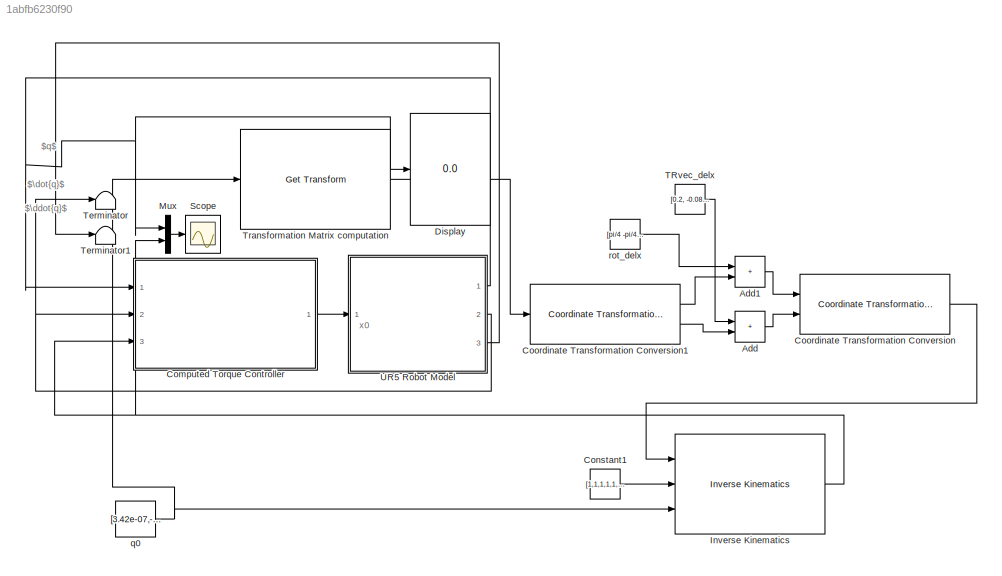
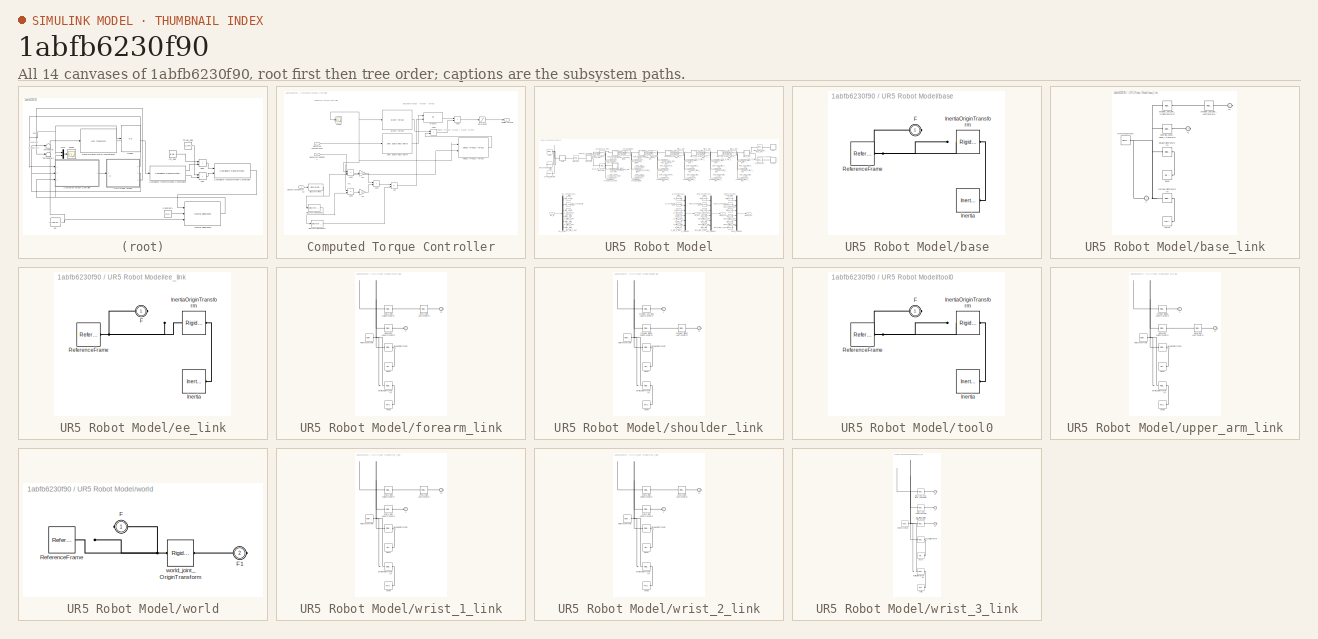
[diagram: thumbnail index - all 14 canvases of the model, root first then tree order]
MODEL slx_1abfb6230f90
KIND model
CONFIG AbsTol = auto
CONFIG EnableMultiTasking = off
CONFIG FixedStep = auto
CONFIG MaxStep = auto
CONFIG MinStep = auto
CONFIG RelTol = 1e-3
CONFIG SampleTimeConstraint = Unconstrained
CONFIG SolverName = VariableStepAuto
CONFIG StartTime = 0.0
CONFIG StopTime = 10.0
WORKSPACE source: mxarray member
WORKSPACE dq0 = [0 0 0 0 0 0]
WORKSPACE q0 = [0 0 0 0 0 0]
WORKSPACE robotModel: robotics.RigidBodyTree (value not decoded)
BLOCK [Sum] Add
  IconShape = rectangular
  Ports = [2, 1]
BLOCK [Sum] Add1
  IconShape = rectangular
  Ports = [2, 1]
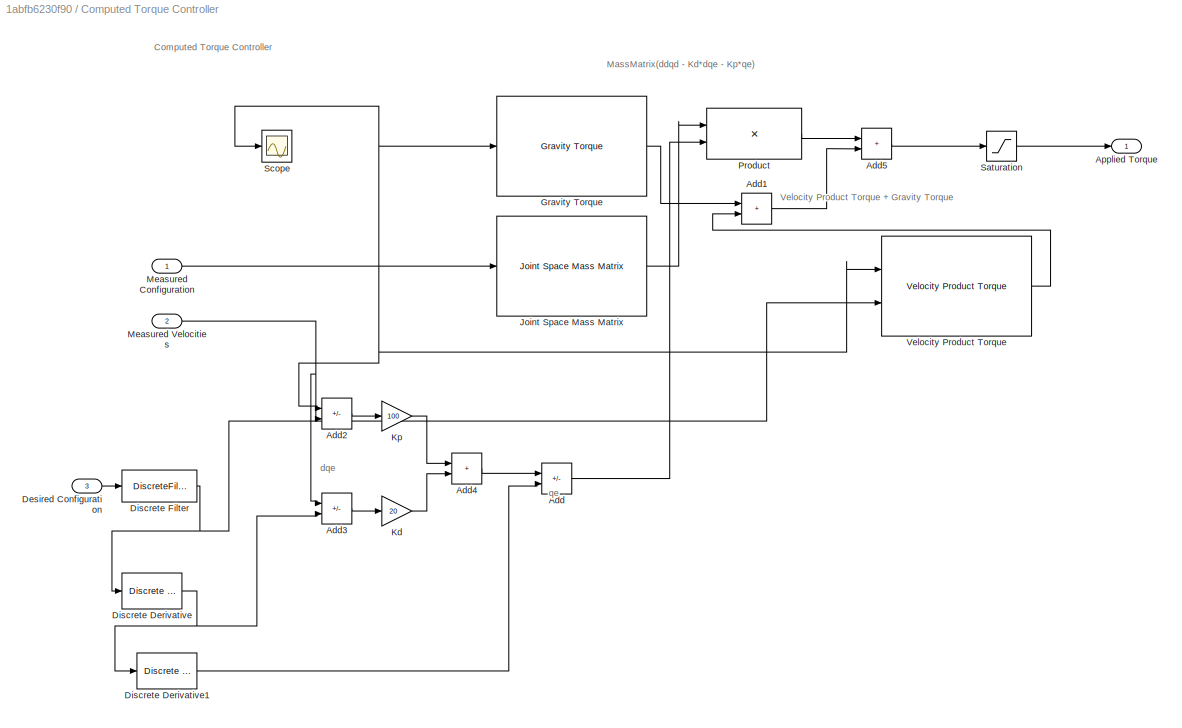
BLOCK [SubSystem] Computed Torque Controller
  Ports = [3, 1]
  RequestExecContextInheritance = off
BLOCK [Sum] Computed Torque Controller/Add
  IconShape = rectangular
  Inputs = -+
  Ports = [2, 1]
BLOCK [Sum] Computed Torque Controller/Add1
  IconShape = rectangular
  Ports = [2, 1]
BLOCK [Sum] Computed Torque Controller/Add2
  IconShape = rectangular
  Inputs = +-
  Ports = [2, 1]
BLOCK [Sum] Computed Torque Controller/Add3
  IconShape = rectangular
  Inputs = +-
  Ports = [2, 1]
BLOCK [Sum] Computed Torque Controller/Add4
  IconShape = rectangular
  Ports = [2, 1]
BLOCK [Sum] Computed Torque Controller/Add5
  IconShape = rectangular
  Ports = [2, 1]
BLOCK [Outport] Computed Torque Controller/Applied Torque
  NameLocation = top
  VectorParamsAs1DForOutWhenUnconnected = off
BLOCK [Inport] Computed Torque Controller/Desired Configuration
  Port = 3
BLOCK [Reference] Computed Torque Controller/Discrete Derivative  REF=simulink/Discrete/Discrete Derivative
  Ports = [1, 1]
  SourceBlock = simulink/Discrete/Discrete Derivative
  SourceProductBaseCode = SL
  SourceType = Discrete Derivative
BLOCK [Reference] Computed Torque Controller/Discrete Derivative1  REF=simulink/Discrete/Discrete Derivative
  Ports = [1, 1]
  SourceBlock = simulink/Discrete/Discrete Derivative
  SourceProductBaseCode = SL
  SourceType = Discrete Derivative
BLOCK [DiscreteFilter] Computed Torque Controller/Discrete Filter
  Denominator = [1]
  InitialStates = repmat(q0',19,1)
  InputPortMap = u0
  Numerator = ones(1,20)*1/20
  Ports = [1, 1]
BLOCK [Reference] Computed Torque Controller/Gravity Torque  REF=robotmaniplib/Gravity Torque
  Ports = [1, 1]
  SourceBlock = robotmaniplib/Gravity Torque
  SourceProductBaseCode = RO
  SourceType = Gravity Torque
BLOCK [Reference] Computed Torque Controller/Joint Space Mass Matrix  REF=robotmaniplib/Joint Space Mass Matrix
  Ports = [1, 1]
  SourceBlock = robotmaniplib/Joint Space Mass Matrix
  SourceProductBaseCode = RO
  SourceType = Joint Space Mass Matrix
BLOCK [Gain] Computed Torque Controller/Kd
  Gain = 20
BLOCK [Gain] Computed Torque Controller/Kp
  Gain = 100
BLOCK [Inport] Computed Torque Controller/Measured Configuration
  NameLocation = top
BLOCK [Inport] Computed Torque Controller/Measured Velocities
  Port = 2
BLOCK [Product] Computed Torque Controller/Product
  Multiplication = Matrix(*)
  Ports = [2, 1]
BLOCK [Saturate] Computed Torque Controller/Saturation
  LowerLimit = -100
  UpperLimit = 100
BLOCK [Scope] Computed Torque Controller/Scope
  Floating = off
  NumInputPorts = 1
  Ports = [1]
  ScopeSpecificationString = Simulink.scopes.TimeScopeBlockCfg('CurrentConfiguration', extmgr.ConfigurationSet(extmgr.Configuration('Core','General UI',true),extmgr.Configuration('Core','Source UI',true),extmgr.Configuration('Sources','WiredSimulink',true,'DataLoggingVariableName','ScopeData1'),extmgr.Configuration('Visuals','Time Domain',true,'SerializedDisplays',{struct('MinYLimReal','-3.23006','MaxYLimReal','3.44404','YLab...<+1906ch>
BLOCK [Reference] Computed Torque Controller/Velocity Product Torque  REF=robotmaniplib/Velocity Product Torque
  Ports = [2, 1]
  SourceBlock = robotmaniplib/Velocity Product Torque
  SourceProductBaseCode = RO
  SourceType = Velocity Product Torque
BLOCK [Constant] Constant1
  Value = [1,1,1,1,1,1]
BLOCK [Reference] Coordinate Transformation Conversion  REF=robotcorelib/Coordinate Transformation Conversion
  Ports = [2, 1]
  SourceBlock = robotcorelib/Coordinate Transformation Conversion
  SourceProductBaseCode = RO,NV,RR,UV
  SourceType = robotics.slcore.internal.block.CoordinateTransformationConversion
BLOCK [Reference] Coordinate Transformation Conversion1  REF=robotcorelib/Coordinate Transformation Conversion
  Ports = [1, 2]
  SourceBlock = robotcorelib/Coordinate Transformation Conversion
  SourceProductBaseCode = RO,NV,RR,UV
  SourceType = robotics.slcore.internal.block.CoordinateTransformationConversion
BLOCK [Display] Display
  Decimation = 1
  Ports = [1]
BLOCK [Reference] Inverse Kinematics  REF=robotmaniplib/Inverse Kinematics
  Ports = [3, 1]
  SourceBlock = robotmaniplib/Inverse Kinematics
  SourceProductBaseCode = RO
  SourceType = Inverse Kinematics
BLOCK [Mux] Mux
  DisplayOption = bar
  Inputs = 2
  Ports = [2, 1]
BLOCK [Scope] Scope
  Floating = off
  NumInputPorts = 1
  Ports = [1]
  ScopeSpecificationString = Simulink.scopes.TimeScopeBlockCfg('CurrentConfiguration', extmgr.ConfigurationSet(extmgr.Configuration('Core','General UI',true),extmgr.Configuration('Core','Source UI',true),extmgr.Configuration('Sources','WiredSimulink',true),extmgr.Configuration('Visuals','Time Domain',true,'SerializedDisplays',{struct('MinYLimReal','-3.23006','MaxYLimReal','3.44404','YLabelReal','','MinYLimMag','0.00000','MaxY...<+1649ch>
BLOCK [Constant] TRvec_delx
  Value = [0.2, -0.08, -0.15]
BLOCK [Terminator] Terminator
BLOCK [Terminator] Terminator1
BLOCK [Reference] Transformation Matrix computation  REF=robotmaniplib/Get Transform
  Ports = [1, 1]
  SourceBlock = robotmaniplib/Get Transform
  SourceProductBaseCode = RO
  SourceType = Get Transform
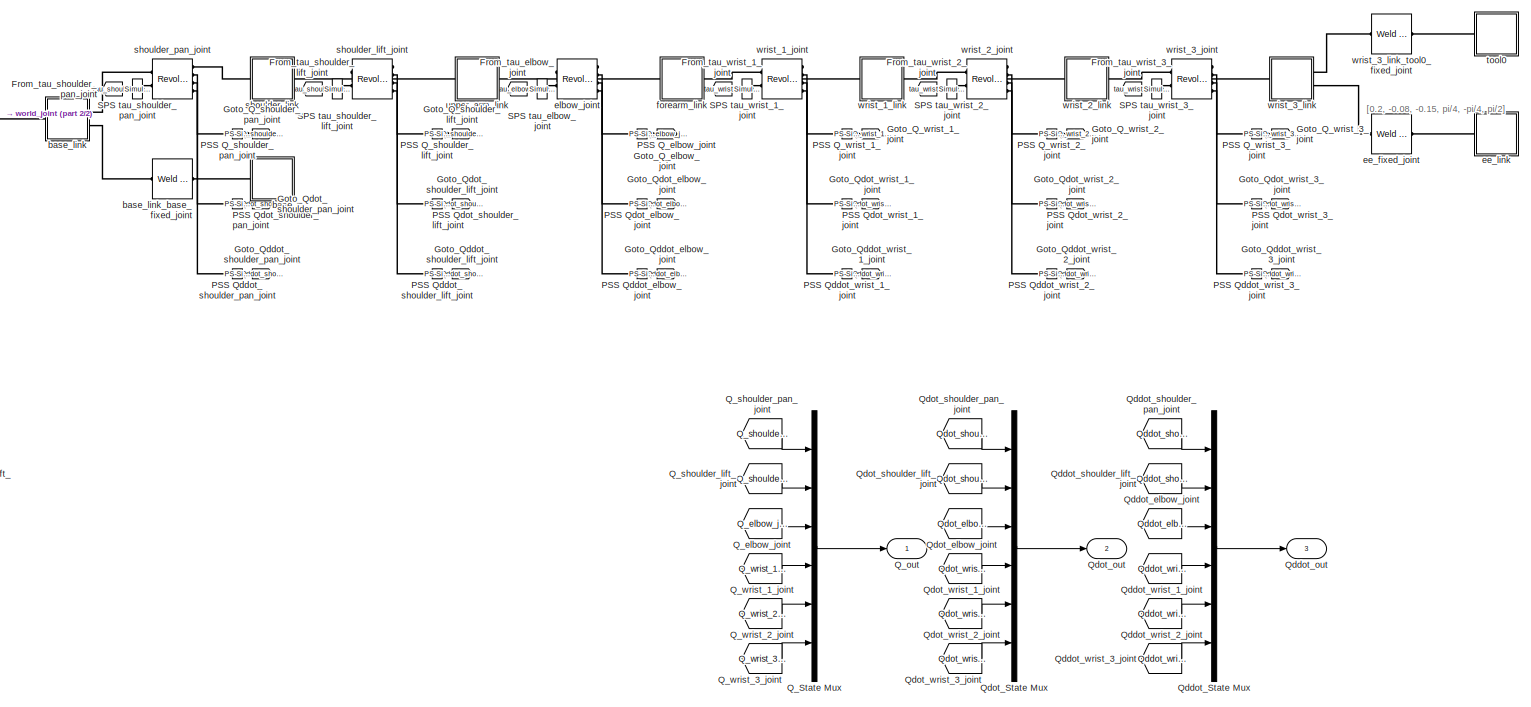
[diagram: UR5 Robot Model - part 1/2, most of the canvas]
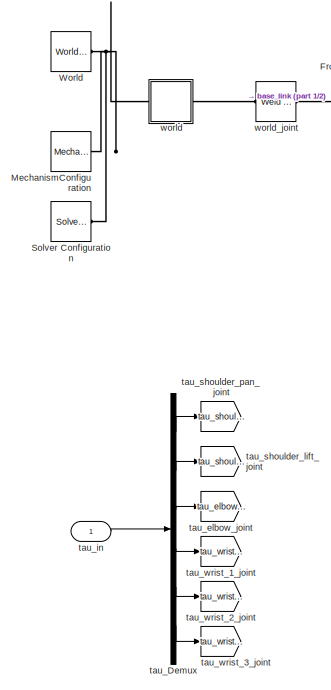
[diagram: UR5 Robot Model - part 2/2, left side, full height]
BLOCK [SubSystem] UR5 Robot Model
  Ports = [1, 3]
  RequestExecContextInheritance = off
BLOCK [From] UR5 Robot Model/From_tau_elbow_joint
  GotoTag = tau_elbow_joint
BLOCK [From] UR5 Robot Model/From_tau_shoulder_lift_joint
  GotoTag = tau_shoulder_lift_joint
BLOCK [From] UR5 Robot Model/From_tau_shoulder_pan_joint
  GotoTag = tau_shoulder_pan_joint
BLOCK [From] UR5 Robot Model/From_tau_wrist_1_joint
  GotoTag = tau_wrist_1_joint
BLOCK [From] UR5 Robot Model/From_tau_wrist_2_joint
  GotoTag = tau_wrist_2_joint
BLOCK [From] UR5 Robot Model/From_tau_wrist_3_joint
  GotoTag = tau_wrist_3_joint
BLOCK [Goto] UR5 Robot Model/Goto_Q_elbow_joint
  GotoTag = Q_elbow_joint
BLOCK [Goto] UR5 Robot Model/Goto_Q_shoulder_lift_joint
  GotoTag = Q_shoulder_lift_joint
BLOCK [Goto] UR5 Robot Model/Goto_Q_shoulder_pan_joint
  GotoTag = Q_shoulder_pan_joint
BLOCK [Goto] UR5 Robot Model/Goto_Q_wrist_1_joint
  GotoTag = Q_wrist_1_joint
BLOCK [Goto] UR5 Robot Model/Goto_Q_wrist_2_joint
  GotoTag = Q_wrist_2_joint
BLOCK [Goto] UR5 Robot Model/Goto_Q_wrist_3_joint
  GotoTag = Q_wrist_3_joint
BLOCK [Goto] UR5 Robot Model/Goto_Qddot_elbow_joint
  GotoTag = Qddot_elbow_joint
BLOCK [Goto] UR5 Robot Model/Goto_Qddot_shoulder_lift_joint
  GotoTag = Qddot_shoulder_lift_joint
BLOCK [Goto] UR5 Robot Model/Goto_Qddot_shoulder_pan_joint
  GotoTag = Qddot_shoulder_pan_joint
BLOCK [Goto] UR5 Robot Model/Goto_Qddot_wrist_1_joint
  GotoTag = Qddot_wrist_1_joint
BLOCK [Goto] UR5 Robot Model/Goto_Qddot_wrist_2_joint
  GotoTag = Qddot_wrist_2_joint
BLOCK [Goto] UR5 Robot Model/Goto_Qddot_wrist_3_joint
  GotoTag = Qddot_wrist_3_joint
BLOCK [Goto] UR5 Robot Model/Goto_Qdot_elbow_joint
  GotoTag = Qdot_elbow_joint
BLOCK [Goto] UR5 Robot Model/Goto_Qdot_shoulder_lift_joint
  GotoTag = Qdot_shoulder_lift_joint
BLOCK [Goto] UR5 Robot Model/Goto_Qdot_shoulder_pan_joint
  GotoTag = Qdot_shoulder_pan_joint
BLOCK [Goto] UR5 Robot Model/Goto_Qdot_wrist_1_joint
  GotoTag = Qdot_wrist_1_joint
BLOCK [Goto] UR5 Robot Model/Goto_Qdot_wrist_2_joint
  GotoTag = Qdot_wrist_2_joint
BLOCK [Goto] UR5 Robot Model/Goto_Qdot_wrist_3_joint
  GotoTag = Qdot_wrist_3_joint
BLOCK [Reference] UR5 Robot Model/MechanismConfiguration  REF=sm_lib/Utilities/Mechanism
Configuration
  Ports = [0, 0, 0, 0, 0, 0, 1]
  SourceBlock = sm_lib/Utilities/Mechanism\nConfiguration
  SourceProductBaseCode = MS
  SourceType = Mechanism\nConfiguration
BLOCK [Reference] UR5 Robot Model/PSS Q_elbow_joint  REF=nesl_utility/PS-Simulink
Converter
  Ports = [0, 1, 0, 0, 0, 1]
  SourceBlock = nesl_utility/PS-Simulink\nConverter
  SourceProductBaseCode = SS,PW,VE
  SourceType = PS-Simulink\nConverter
BLOCK [Reference] UR5 Robot Model/PSS Q_shoulder_lift_joint  REF=nesl_utility/PS-Simulink
Converter
  Ports = [0, 1, 0, 0, 0, 1]
  SourceBlock = nesl_utility/PS-Simulink\nConverter
  SourceProductBaseCode = SS,PW,VE
  SourceType = PS-Simulink\nConverter
BLOCK [Reference] UR5 Robot Model/PSS Q_shoulder_pan_joint  REF=nesl_utility/PS-Simulink
Converter
  Ports = [0, 1, 0, 0, 0, 1]
  SourceBlock = nesl_utility/PS-Simulink\nConverter
  SourceProductBaseCode = SS,PW,VE
  SourceType = PS-Simulink\nConverter
BLOCK [Reference] UR5 Robot Model/PSS Q_wrist_1_joint  REF=nesl_utility/PS-Simulink
Converter
  Ports = [0, 1, 0, 0, 0, 1]
  SourceBlock = nesl_utility/PS-Simulink\nConverter
  SourceProductBaseCode = SS,PW,VE
  SourceType = PS-Simulink\nConverter
BLOCK [Reference] UR5 Robot Model/PSS Q_wrist_2_joint  REF=nesl_utility/PS-Simulink
Converter
  Ports = [0, 1, 0, 0, 0, 1]
  SourceBlock = nesl_utility/PS-Simulink\nConverter
  SourceProductBaseCode = SS,PW,VE
  SourceType = PS-Simulink\nConverter
BLOCK [Reference] UR5 Robot Model/PSS Q_wrist_3_joint  REF=nesl_utility/PS-Simulink
Converter
  Ports = [0, 1, 0, 0, 0, 1]
  SourceBlock = nesl_utility/PS-Simulink\nConverter
  SourceProductBaseCode = SS,PW,VE
  SourceType = PS-Simulink\nConverter
BLOCK [Reference] UR5 Robot Model/PSS Qddot_elbow_joint  REF=nesl_utility/PS-Simulink
Converter
  Ports = [0, 1, 0, 0, 0, 1]
  SourceBlock = nesl_utility/PS-Simulink\nConverter
  SourceProductBaseCode = SS,PW,VE
  SourceType = PS-Simulink\nConverter
BLOCK [Reference] UR5 Robot Model/PSS Qddot_shoulder_lift_joint  REF=nesl_utility/PS-Simulink
Converter
  Ports = [0, 1, 0, 0, 0, 1]
  SourceBlock = nesl_utility/PS-Simulink\nConverter
  SourceProductBaseCode = SS,PW,VE
  SourceType = PS-Simulink\nConverter
BLOCK [Reference] UR5 Robot Model/PSS Qddot_shoulder_pan_joint  REF=nesl_utility/PS-Simulink
Converter
  Ports = [0, 1, 0, 0, 0, 1]
  SourceBlock = nesl_utility/PS-Simulink\nConverter
  SourceProductBaseCode = SS,PW,VE
  SourceType = PS-Simulink\nConverter
BLOCK [Reference] UR5 Robot Model/PSS Qddot_wrist_1_joint  REF=nesl_utility/PS-Simulink
Converter
  Ports = [0, 1, 0, 0, 0, 1]
  SourceBlock = nesl_utility/PS-Simulink\nConverter
  SourceProductBaseCode = SS,PW,VE
  SourceType = PS-Simulink\nConverter
BLOCK [Reference] UR5 Robot Model/PSS Qddot_wrist_2_joint  REF=nesl_utility/PS-Simulink
Converter
  Ports = [0, 1, 0, 0, 0, 1]
  SourceBlock = nesl_utility/PS-Simulink\nConverter
  SourceProductBaseCode = SS,PW,VE
  SourceType = PS-Simulink\nConverter
BLOCK [Reference] UR5 Robot Model/PSS Qddot_wrist_3_joint  REF=nesl_utility/PS-Simulink
Converter
  Ports = [0, 1, 0, 0, 0, 1]
  SourceBlock = nesl_utility/PS-Simulink\nConverter
  SourceProductBaseCode = SS,PW,VE
  SourceType = PS-Simulink\nConverter
BLOCK [Reference] UR5 Robot Model/PSS Qdot_elbow_joint  REF=nesl_utility/PS-Simulink
Converter
  Ports = [0, 1, 0, 0, 0, 1]
  SourceBlock = nesl_utility/PS-Simulink\nConverter
  SourceProductBaseCode = SS,PW,VE
  SourceType = PS-Simulink\nConverter
BLOCK [Reference] UR5 Robot Model/PSS Qdot_shoulder_lift_joint  REF=nesl_utility/PS-Simulink
Converter
  Ports = [0, 1, 0, 0, 0, 1]
  SourceBlock = nesl_utility/PS-Simulink\nConverter
  SourceProductBaseCode = SS,PW,VE
  SourceType = PS-Simulink\nConverter
BLOCK [Reference] UR5 Robot Model/PSS Qdot_shoulder_pan_joint  REF=nesl_utility/PS-Simulink
Converter
  Ports = [0, 1, 0, 0, 0, 1]
  SourceBlock = nesl_utility/PS-Simulink\nConverter
  SourceProductBaseCode = SS,PW,VE
  SourceType = PS-Simulink\nConverter
BLOCK [Reference] UR5 Robot Model/PSS Qdot_wrist_1_joint  REF=nesl_utility/PS-Simulink
Converter
  Ports = [0, 1, 0, 0, 0, 1]
  SourceBlock = nesl_utility/PS-Simulink\nConverter
  SourceProductBaseCode = SS,PW,VE
  SourceType = PS-Simulink\nConverter
BLOCK [Reference] UR5 Robot Model/PSS Qdot_wrist_2_joint  REF=nesl_utility/PS-Simulink
Converter
  Ports = [0, 1, 0, 0, 0, 1]
  SourceBlock = nesl_utility/PS-Simulink\nConverter
  SourceProductBaseCode = SS,PW,VE
  SourceType = PS-Simulink\nConverter
BLOCK [Reference] UR5 Robot Model/PSS Qdot_wrist_3_joint  REF=nesl_utility/PS-Simulink
Converter
  Ports = [0, 1, 0, 0, 0, 1]
  SourceBlock = nesl_utility/PS-Simulink\nConverter
  SourceProductBaseCode = SS,PW,VE
  SourceType = PS-Simulink\nConverter
BLOCK [Mux] UR5 Robot Model/Q_State Mux
  DisplayOption = bar
  Inputs = 6
  Ports = [6, 1]
BLOCK [From] UR5 Robot Model/Q_elbow_joint
  GotoTag = Q_elbow_joint
BLOCK [Outport] UR5 Robot Model/Q_out
BLOCK [From] UR5 Robot Model/Q_shoulder_lift_joint
  GotoTag = Q_shoulder_lift_joint
BLOCK [From] UR5 Robot Model/Q_shoulder_pan_joint
  GotoTag = Q_shoulder_pan_joint
BLOCK [From] UR5 Robot Model/Q_wrist_1_joint
  GotoTag = Q_wrist_1_joint
BLOCK [From] UR5 Robot Model/Q_wrist_2_joint
  GotoTag = Q_wrist_2_joint
BLOCK [From] UR5 Robot Model/Q_wrist_3_joint
  GotoTag = Q_wrist_3_joint
BLOCK [Mux] UR5 Robot Model/Qddot_State Mux
  DisplayOption = bar
  Inputs = 6
  Ports = [6, 1]
BLOCK [From] UR5 Robot Model/Qddot_elbow_joint
  GotoTag = Qddot_elbow_joint
BLOCK [Outport] UR5 Robot Model/Qddot_out
  Port = 3
BLOCK [From] UR5 Robot Model/Qddot_shoulder_lift_joint
  GotoTag = Qddot_shoulder_lift_joint
BLOCK [From] UR5 Robot Model/Qddot_shoulder_pan_joint
  GotoTag = Qddot_shoulder_pan_joint
BLOCK [From] UR5 Robot Model/Qddot_wrist_1_joint
  GotoTag = Qddot_wrist_1_joint
BLOCK [From] UR5 Robot Model/Qddot_wrist_2_joint
  GotoTag = Qddot_wrist_2_joint
BLOCK [From] UR5 Robot Model/Qddot_wrist_3_joint
  GotoTag = Qddot_wrist_3_joint
BLOCK [Mux] UR5 Robot Model/Qdot_State Mux
  DisplayOption = bar
  Inputs = 6
  Ports = [6, 1]
BLOCK [From] UR5 Robot Model/Qdot_elbow_joint
  GotoTag = Qdot_elbow_joint
BLOCK [Outport] UR5 Robot Model/Qdot_out
  Port = 2
BLOCK [From] UR5 Robot Model/Qdot_shoulder_lift_joint
  GotoTag = Qdot_shoulder_lift_joint
BLOCK [From] UR5 Robot Model/Qdot_shoulder_pan_joint
  GotoTag = Qdot_shoulder_pan_joint
BLOCK [From] UR5 Robot Model/Qdot_wrist_1_joint
  GotoTag = Qdot_wrist_1_joint
BLOCK [From] UR5 Robot Model/Qdot_wrist_2_joint
  GotoTag = Qdot_wrist_2_joint
BLOCK [From] UR5 Robot Model/Qdot_wrist_3_joint
  GotoTag = Qdot_wrist_3_joint
BLOCK [Reference] UR5 Robot Model/SPS tau_elbow_joint  REF=nesl_utility/Simulink-PS
Converter
  Ports = [1, 0, 0, 0, 0, 0, 1]
  SourceBlock = nesl_utility/Simulink-PS\nConverter
  SourceProductBaseCode = SS,PW,VE
  SourceType = Simulink-PS\nConverter
BLOCK [Reference] UR5 Robot Model/SPS tau_shoulder_lift_joint  REF=nesl_utility/Simulink-PS
Converter
  Ports = [1, 0, 0, 0, 0, 0, 1]
  SourceBlock = nesl_utility/Simulink-PS\nConverter
  SourceProductBaseCode = SS,PW,VE
  SourceType = Simulink-PS\nConverter
BLOCK [Reference] UR5 Robot Model/SPS tau_shoulder_pan_joint  REF=nesl_utility/Simulink-PS
Converter
  Ports = [1, 0, 0, 0, 0, 0, 1]
  SourceBlock = nesl_utility/Simulink-PS\nConverter
  SourceProductBaseCode = SS,PW,VE
  SourceType = Simulink-PS\nConverter
BLOCK [Reference] UR5 Robot Model/SPS tau_wrist_1_joint  REF=nesl_utility/Simulink-PS
Converter
  Ports = [1, 0, 0, 0, 0, 0, 1]
  SourceBlock = nesl_utility/Simulink-PS\nConverter
  SourceProductBaseCode = SS,PW,VE
  SourceType = Simulink-PS\nConverter
BLOCK [Reference] UR5 Robot Model/SPS tau_wrist_2_joint  REF=nesl_utility/Simulink-PS
Converter
  Ports = [1, 0, 0, 0, 0, 0, 1]
  SourceBlock = nesl_utility/Simulink-PS\nConverter
  SourceProductBaseCode = SS,PW,VE
  SourceType = Simulink-PS\nConverter
BLOCK [Reference] UR5 Robot Model/SPS tau_wrist_3_joint  REF=nesl_utility/Simulink-PS
Converter
  Ports = [1, 0, 0, 0, 0, 0, 1]
  SourceBlock = nesl_utility/Simulink-PS\nConverter
  SourceProductBaseCode = SS,PW,VE
  SourceType = Simulink-PS\nConverter
BLOCK [Reference] UR5 Robot Model/Solver Configuration  REF=nesl_utility/Solver
Configuration
  Ports = [0, 0, 0, 0, 0, 0, 1]
  SourceBlock = nesl_utility/Solver\nConfiguration
  SourceProductBaseCode = SS,PW,VE
  SourceType = Solver\nConfiguration
BLOCK [Reference] UR5 Robot Model/World  REF=sm_lib/Frames and
Transforms/World Frame
  Ports = [0, 0, 0, 0, 0, 0, 1]
  SourceBlock = sm_lib/Frames and\nTransforms/World Frame
  SourceProductBaseCode = MS
  SourceType = World Frame
BLOCK [SubSystem] UR5 Robot Model/base
  Ports = [0, 0, 0, 0, 0, 1]
  RequestExecContextInheritance = off
BLOCK [PMIOPort] UR5 Robot Model/base/F
  Side = Left
BLOCK [Reference] UR5 Robot Model/base/Inertia  REF=sm_lib/Body Elements/Inertia
  Ports = [0, 0, 0, 0, 0, 0, 1]
  SourceBlock = sm_lib/Body Elements/Inertia
  SourceProductBaseCode = MS
  SourceType = Inertia
BLOCK [Reference] UR5 Robot Model/base/InertiaOriginTransform  REF=sm_lib/Frames and
Transforms/Rigid
Transform
  Ports = [0, 0, 0, 0, 0, 1, 1]
  SourceBlock = sm_lib/Frames and\nTransforms/Rigid\nTransform
  SourceProductBaseCode = MS
  SourceType = Rigid\nTransform
BLOCK [Reference] UR5 Robot Model/base/ReferenceFrame  REF=sm_lib/Frames and
Transforms/Reference
Frame
  Ports = [0, 0, 0, 0, 0, 0, 1]
  SourceBlock = sm_lib/Frames and\nTransforms/Reference\nFrame
  SourceProductBaseCode = MS
  SourceType = Reference\nFrame
BLOCK [SubSystem] UR5 Robot Model/base_link
  Ports = [0, 0, 0, 0, 0, 1, 2]
  RequestExecContextInheritance = off
BLOCK [PMIOPort] UR5 Robot Model/base_link/F
  Side = Left
BLOCK [PMIOPort] UR5 Robot Model/base_link/F1
  Port = 3
  Side = Right
BLOCK [PMIOPort] UR5 Robot Model/base_link/F2
  Port = 2
  Side = Right
BLOCK [Reference] UR5 Robot Model/base_link/Inertia  REF=sm_lib/Body Elements/Inertia
  Ports = [0, 0, 0, 0, 0, 0, 1]
  SourceBlock = sm_lib/Body Elements/Inertia
  SourceProductBaseCode = MS
  SourceType = Inertia
BLOCK [Reference] UR5 Robot Model/base_link/InertiaOriginTransform  REF=sm_lib/Frames and
Transforms/Rigid
Transform
  Ports = [0, 0, 0, 0, 0, 1, 1]
  SourceBlock = sm_lib/Frames and\nTransforms/Rigid\nTransform
  SourceProductBaseCode = MS
  SourceType = Rigid\nTransform
BLOCK [Reference] UR5 Robot Model/base_link/ReferenceFrame  REF=sm_lib/Frames and
Transforms/Reference
Frame
  Ports = [0, 0, 0, 0, 0, 0, 1]
  SourceBlock = sm_lib/Frames and\nTransforms/Reference\nFrame
  SourceProductBaseCode = MS
  SourceType = Reference\nFrame
BLOCK [Reference] UR5 Robot Model/base_link/Visual  REF=sm_lib/Body Elements/File Solid
  Ports = [0, 0, 0, 0, 0, 0, 1]
  SourceBlock = sm_lib/Body Elements/File Solid
  SourceProductBaseCode = MS
  SourceType = File Solid
BLOCK [Reference] UR5 Robot Model/base_link/VisualOriginTransform  REF=sm_lib/Frames and
Transforms/Rigid
Transform
  Ports = [0, 0, 0, 0, 0, 1, 1]
  SourceBlock = sm_lib/Frames and\nTransforms/Rigid\nTransform
  SourceProductBaseCode = MS
  SourceType = Rigid\nTransform
BLOCK [Reference] UR5 Robot Model/base_link/base_link_base_fixed_joint_OriginTransform  REF=sm_lib/Frames and
Transforms/Rigid
Transform
  Ports = [0, 0, 0, 0, 0, 1, 1]
  SourceBlock = sm_lib/Frames and\nTransforms/Rigid\nTransform
  SourceProductBaseCode = MS
  SourceType = Rigid\nTransform
BLOCK [Reference] UR5 Robot Model/base_link/shoulder_pan_joint_AxisTransform  REF=sm_lib/Frames and
Transforms/Rigid
Transform
  Ports = [0, 0, 0, 0, 0, 1, 1]
  SourceBlock = sm_lib/Frames and\nTransforms/Rigid\nTransform
  SourceProductBaseCode = MS
  SourceType = Rigid\nTransform
BLOCK [Reference] UR5 Robot Model/base_link/shoulder_pan_joint_OriginTransform  REF=sm_lib/Frames and
Transforms/Rigid
Transform
  Ports = [0, 0, 0, 0, 0, 1, 1]
  SourceBlock = sm_lib/Frames and\nTransforms/Rigid\nTransform
  SourceProductBaseCode = MS
  SourceType = Rigid\nTransform
BLOCK [Reference] UR5 Robot Model/base_link_base_fixed_joint  REF=sm_lib/Joints/Weld Joint
  Ports = [0, 0, 0, 0, 0, 1, 1]
  SourceBlock = sm_lib/Joints/Weld Joint
  SourceProductBaseCode = MS
  SourceType = Weld Joint
BLOCK [Reference] UR5 Robot Model/ee_fixed_joint  REF=sm_lib/Joints/Weld Joint
  Ports = [0, 0, 0, 0, 0, 1, 1]
  SourceBlock = sm_lib/Joints/Weld Joint
  SourceProductBaseCode = MS
  SourceType = Weld Joint
BLOCK [SubSystem] UR5 Robot Model/ee_link
  Ports = [0, 0, 0, 0, 0, 1]
  RequestExecContextInheritance = off
BLOCK [PMIOPort] UR5 Robot Model/ee_link/F
  Side = Left
BLOCK [Reference] UR5 Robot Model/ee_link/Inertia  REF=sm_lib/Body Elements/Inertia
  Ports = [0, 0, 0, 0, 0, 0, 1]
  SourceBlock = sm_lib/Body Elements/Inertia
  SourceProductBaseCode = MS
  SourceType = Inertia
BLOCK [Reference] UR5 Robot Model/ee_link/InertiaOriginTransform  REF=sm_lib/Frames and
Transforms/Rigid
Transform
  Ports = [0, 0, 0, 0, 0, 1, 1]
  SourceBlock = sm_lib/Frames and\nTransforms/Rigid\nTransform
  SourceProductBaseCode = MS
  SourceType = Rigid\nTransform
BLOCK [Reference] UR5 Robot Model/ee_link/ReferenceFrame  REF=sm_lib/Frames and
Transforms/Reference
Frame
  Ports = [0, 0, 0, 0, 0, 0, 1]
  SourceBlock = sm_lib/Frames and\nTransforms/Reference\nFrame
  SourceProductBaseCode = MS
  SourceType = Reference\nFrame
BLOCK [Reference] UR5 Robot Model/elbow_joint  REF=sm_lib/Joints/Revolute Joint
  Ports = [0, 0, 0, 0, 0, 2, 4]
  SourceBlock = sm_lib/Joints/Revolute Joint
  SourceProductBaseCode = MS
  SourceType = Revolute Joint
BLOCK [SubSystem] UR5 Robot Model/forearm_link
  Ports = [0, 0, 0, 0, 0, 1, 1]
  RequestExecContextInheritance = off
BLOCK [PMIOPort] UR5 Robot Model/forearm_link/F
  Side = Left
BLOCK [PMIOPort] UR5 Robot Model/forearm_link/F1
  Port = 2
  Side = Right
BLOCK [Reference] UR5 Robot Model/forearm_link/Inertia  REF=sm_lib/Body Elements/Inertia
  Ports = [0, 0, 0, 0, 0, 0, 1]
  SourceBlock = sm_lib/Body Elements/Inertia
  SourceProductBaseCode = MS
  SourceType = Inertia
BLOCK [Reference] UR5 Robot Model/forearm_link/InertiaOriginTransform  REF=sm_lib/Frames and
Transforms/Rigid
Transform
  Ports = [0, 0, 0, 0, 0, 1, 1]
  SourceBlock = sm_lib/Frames and\nTransforms/Rigid\nTransform
  SourceProductBaseCode = MS
  SourceType = Rigid\nTransform
BLOCK [Reference] UR5 Robot Model/forearm_link/ReferenceFrame  REF=sm_lib/Frames and
Transforms/Reference
Frame
  Ports = [0, 0, 0, 0, 0, 0, 1]
  SourceBlock = sm_lib/Frames and\nTransforms/Reference\nFrame
  SourceProductBaseCode = MS
  SourceType = Reference\nFrame
BLOCK [Reference] UR5 Robot Model/forearm_link/Visual  REF=sm_lib/Body Elements/File Solid
  Ports = [0, 0, 0, 0, 0, 0, 1]
  SourceBlock = sm_lib/Body Elements/File Solid
  SourceProductBaseCode = MS
  SourceType = File Solid
BLOCK [Reference] UR5 Robot Model/forearm_link/VisualOriginTransform  REF=sm_lib/Frames and
Transforms/Rigid
Transform
  Ports = [0, 0, 0, 0, 0, 1, 1]
  SourceBlock = sm_lib/Frames and\nTransforms/Rigid\nTransform
  SourceProductBaseCode = MS
  SourceType = Rigid\nTransform
BLOCK [Reference] UR5 Robot Model/forearm_link/elbow_joint_AxisInvTransform  REF=sm_lib/Frames and
Transforms/Rigid
Transform
  Ports = [0, 0, 0, 0, 0, 1, 1]
  SourceBlock = sm_lib/Frames and\nTransforms/Rigid\nTransform
  SourceProductBaseCode = MS
  SourceType = Rigid\nTransform
BLOCK [Reference] UR5 Robot Model/forearm_link/wrist_1_joint_AxisTransform  REF=sm_lib/Frames and
Transforms/Rigid
Transform
  Ports = [0, 0, 0, 0, 0, 1, 1]
  SourceBlock = sm_lib/Frames and\nTransforms/Rigid\nTransform
  SourceProductBaseCode = MS
  SourceType = Rigid\nTransform
BLOCK [Reference] UR5 Robot Model/forearm_link/wrist_1_joint_OriginTransform  REF=sm_lib/Frames and
Transforms/Rigid
Transform
  Ports = [0, 0, 0, 0, 0, 1, 1]
  SourceBlock = sm_lib/Frames and\nTransforms/Rigid\nTransform
  SourceProductBaseCode = MS
  SourceType = Rigid\nTransform
BLOCK [Reference] UR5 Robot Model/shoulder_lift_joint  REF=sm_lib/Joints/Revolute Joint
  Ports = [0, 0, 0, 0, 0, 2, 4]
  SourceBlock = sm_lib/Joints/Revolute Joint
  SourceProductBaseCode = MS
  SourceType = Revolute Joint
BLOCK [SubSystem] UR5 Robot Model/shoulder_link
  Ports = [0, 0, 0, 0, 0, 1, 1]
  RequestExecContextInheritance = off
BLOCK [PMIOPort] UR5 Robot Model/shoulder_link/F
  Side = Left
BLOCK [PMIOPort] UR5 Robot Model/shoulder_link/F1
  Port = 2
  Side = Right
BLOCK [Reference] UR5 Robot Model/shoulder_link/Inertia  REF=sm_lib/Body Elements/Inertia
  Ports = [0, 0, 0, 0, 0, 0, 1]
  SourceBlock = sm_lib/Body Elements/Inertia
  SourceProductBaseCode = MS
  SourceType = Inertia
BLOCK [Reference] UR5 Robot Model/shoulder_link/InertiaOriginTransform  REF=sm_lib/Frames and
Transforms/Rigid
Transform
  Ports = [0, 0, 0, 0, 0, 1, 1]
  SourceBlock = sm_lib/Frames and\nTransforms/Rigid\nTransform
  SourceProductBaseCode = MS
  SourceType = Rigid\nTransform
BLOCK [Reference] UR5 Robot Model/shoulder_link/ReferenceFrame  REF=sm_lib/Frames and
Transforms/Reference
Frame
  Ports = [0, 0, 0, 0, 0, 0, 1]
  SourceBlock = sm_lib/Frames and\nTransforms/Reference\nFrame
  SourceProductBaseCode = MS
  SourceType = Reference\nFrame
BLOCK [Reference] UR5 Robot Model/shoulder_link/Visual  REF=sm_lib/Body Elements/File Solid
  Ports = [0, 0, 0, 0, 0, 0, 1]
  SourceBlock = sm_lib/Body Elements/File Solid
  SourceProductBaseCode = MS
  SourceType = File Solid
BLOCK [Reference] UR5 Robot Model/shoulder_link/VisualOriginTransform  REF=sm_lib/Frames and
Transforms/Rigid
Transform
  Ports = [0, 0, 0, 0, 0, 1, 1]
  SourceBlock = sm_lib/Frames and\nTransforms/Rigid\nTransform
  SourceProductBaseCode = MS
  SourceType = Rigid\nTransform
BLOCK [Reference] UR5 Robot Model/shoulder_link/shoulder_lift_joint_AxisTransform  REF=sm_lib/Frames and
Transforms/Rigid
Transform
  Ports = [0, 0, 0, 0, 0, 1, 1]
  SourceBlock = sm_lib/Frames and\nTransforms/Rigid\nTransform
  SourceProductBaseCode = MS
  SourceType = Rigid\nTransform
BLOCK [Reference] UR5 Robot Model/shoulder_link/shoulder_lift_joint_OriginTransform  REF=sm_lib/Frames and
Transforms/Rigid
Transform
  Ports = [0, 0, 0, 0, 0, 1, 1]
  SourceBlock = sm_lib/Frames and\nTransforms/Rigid\nTransform
  SourceProductBaseCode = MS
  SourceType = Rigid\nTransform
BLOCK [Reference] UR5 Robot Model/shoulder_link/shoulder_pan_joint_AxisInvTransform  REF=sm_lib/Frames and
Transforms/Rigid
Transform
  Ports = [0, 0, 0, 0, 0, 1, 1]
  SourceBlock = sm_lib/Frames and\nTransforms/Rigid\nTransform
  SourceProductBaseCode = MS
  SourceType = Rigid\nTransform
BLOCK [Reference] UR5 Robot Model/shoulder_pan_joint  REF=sm_lib/Joints/Revolute Joint
  Ports = [0, 0, 0, 0, 0, 2, 4]
  SourceBlock = sm_lib/Joints/Revolute Joint
  SourceProductBaseCode = MS
  SourceType = Revolute Joint
BLOCK [Demux] UR5 Robot Model/tau_Demux
  Outputs = 6
  Ports = [1, 6]
BLOCK [Goto] UR5 Robot Model/tau_elbow_joint
  GotoTag = tau_elbow_joint
BLOCK [Inport] UR5 Robot Model/tau_in
BLOCK [Goto] UR5 Robot Model/tau_shoulder_lift_joint
  GotoTag = tau_shoulder_lift_joint
BLOCK [Goto] UR5 Robot Model/tau_shoulder_pan_joint
  GotoTag = tau_shoulder_pan_joint
BLOCK [Goto] UR5 Robot Model/tau_wrist_1_joint
  GotoTag = tau_wrist_1_joint
BLOCK [Goto] UR5 Robot Model/tau_wrist_2_joint
  GotoTag = tau_wrist_2_joint
BLOCK [Goto] UR5 Robot Model/tau_wrist_3_joint
  GotoTag = tau_wrist_3_joint
BLOCK [SubSystem] UR5 Robot Model/tool0
  Ports = [0, 0, 0, 0, 0, 1]
  RequestExecContextInheritance = off
BLOCK [PMIOPort] UR5 Robot Model/tool0/F
  Side = Left
BLOCK [Reference] UR5 Robot Model/tool0/Inertia  REF=sm_lib/Body Elements/Inertia
  Ports = [0, 0, 0, 0, 0, 0, 1]
  SourceBlock = sm_lib/Body Elements/Inertia
  SourceProductBaseCode = MS
  SourceType = Inertia
BLOCK [Reference] UR5 Robot Model/tool0/InertiaOriginTransform  REF=sm_lib/Frames and
Transforms/Rigid
Transform
  Ports = [0, 0, 0, 0, 0, 1, 1]
  SourceBlock = sm_lib/Frames and\nTransforms/Rigid\nTransform
  SourceProductBaseCode = MS
  SourceType = Rigid\nTransform
BLOCK [Reference] UR5 Robot Model/tool0/ReferenceFrame  REF=sm_lib/Frames and
Transforms/Reference
Frame
  Ports = [0, 0, 0, 0, 0, 0, 1]
  SourceBlock = sm_lib/Frames and\nTransforms/Reference\nFrame
  SourceProductBaseCode = MS
  SourceType = Reference\nFrame
BLOCK [SubSystem] UR5 Robot Model/upper_arm_link
  Ports = [0, 0, 0, 0, 0, 1, 1]
  RequestExecContextInheritance = off
BLOCK [PMIOPort] UR5 Robot Model/upper_arm_link/F
  Side = Left
BLOCK [PMIOPort] UR5 Robot Model/upper_arm_link/F1
  Port = 2
  Side = Right
BLOCK [Reference] UR5 Robot Model/upper_arm_link/Inertia  REF=sm_lib/Body Elements/Inertia
  Ports = [0, 0, 0, 0, 0, 0, 1]
  SourceBlock = sm_lib/Body Elements/Inertia
  SourceProductBaseCode = MS
  SourceType = Inertia
BLOCK [Reference] UR5 Robot Model/upper_arm_link/InertiaOriginTransform  REF=sm_lib/Frames and
Transforms/Rigid
Transform
  Ports = [0, 0, 0, 0, 0, 1, 1]
  SourceBlock = sm_lib/Frames and\nTransforms/Rigid\nTransform
  SourceProductBaseCode = MS
  SourceType = Rigid\nTransform
BLOCK [Reference] UR5 Robot Model/upper_arm_link/ReferenceFrame  REF=sm_lib/Frames and
Transforms/Reference
Frame
  Ports = [0, 0, 0, 0, 0, 0, 1]
  SourceBlock = sm_lib/Frames and\nTransforms/Reference\nFrame
  SourceProductBaseCode = MS
  SourceType = Reference\nFrame
BLOCK [Reference] UR5 Robot Model/upper_arm_link/Visual  REF=sm_lib/Body Elements/File Solid
  Ports = [0, 0, 0, 0, 0, 0, 1]
  SourceBlock = sm_lib/Body Elements/File Solid
  SourceProductBaseCode = MS
  SourceType = File Solid
BLOCK [Reference] UR5 Robot Model/upper_arm_link/VisualOriginTransform  REF=sm_lib/Frames and
Transforms/Rigid
Transform
  Ports = [0, 0, 0, 0, 0, 1, 1]
  SourceBlock = sm_lib/Frames and\nTransforms/Rigid\nTransform
  SourceProductBaseCode = MS
  SourceType = Rigid\nTransform
BLOCK [Reference] UR5 Robot Model/upper_arm_link/elbow_joint_AxisTransform  REF=sm_lib/Frames and
Transforms/Rigid
Transform
  Ports = [0, 0, 0, 0, 0, 1, 1]
  SourceBlock = sm_lib/Frames and\nTransforms/Rigid\nTransform
  SourceProductBaseCode = MS
  SourceType = Rigid\nTransform
BLOCK [Reference] UR5 Robot Model/upper_arm_link/elbow_joint_OriginTransform  REF=sm_lib/Frames and
Transforms/Rigid
Transform
  Ports = [0, 0, 0, 0, 0, 1, 1]
  SourceBlock = sm_lib/Frames and\nTransforms/Rigid\nTransform
  SourceProductBaseCode = MS
  SourceType = Rigid\nTransform
BLOCK [Reference] UR5 Robot Model/upper_arm_link/shoulder_lift_joint_AxisInvTransform  REF=sm_lib/Frames and
Transforms/Rigid
Transform
  Ports = [0, 0, 0, 0, 0, 1, 1]
  SourceBlock = sm_lib/Frames and\nTransforms/Rigid\nTransform
  SourceProductBaseCode = MS
  SourceType = Rigid\nTransform
BLOCK [SubSystem] UR5 Robot Model/world
  Ports = [0, 0, 0, 0, 0, 1, 1]
  RequestExecContextInheritance = off
BLOCK [PMIOPort] UR5 Robot Model/world/F
  Side = Left
BLOCK [PMIOPort] UR5 Robot Model/world/F1
  Port = 2
  Side = Right
BLOCK [Reference] UR5 Robot Model/world/ReferenceFrame  REF=sm_lib/Frames and
Transforms/Reference
Frame
  Ports = [0, 0, 0, 0, 0, 0, 1]
  SourceBlock = sm_lib/Frames and\nTransforms/Reference\nFrame
  SourceProductBaseCode = MS
  SourceType = Reference\nFrame
BLOCK [Reference] UR5 Robot Model/world/world_joint_OriginTransform  REF=sm_lib/Frames and
Transforms/Rigid
Transform
  Ports = [0, 0, 0, 0, 0, 1, 1]
  SourceBlock = sm_lib/Frames and\nTransforms/Rigid\nTransform
  SourceProductBaseCode = MS
  SourceType = Rigid\nTransform
BLOCK [Reference] UR5 Robot Model/world_joint  REF=sm_lib/Joints/Weld Joint
  Ports = [0, 0, 0, 0, 0, 1, 1]
  SourceBlock = sm_lib/Joints/Weld Joint
  SourceProductBaseCode = MS
  SourceType = Weld Joint
BLOCK [Reference] UR5 Robot Model/wrist_1_joint  REF=sm_lib/Joints/Revolute Joint
  Ports = [0, 0, 0, 0, 0, 2, 4]
  SourceBlock = sm_lib/Joints/Revolute Joint
  SourceProductBaseCode = MS
  SourceType = Revolute Joint
BLOCK [SubSystem] UR5 Robot Model/wrist_1_link
  Ports = [0, 0, 0, 0, 0, 1, 1]
  RequestExecContextInheritance = off
BLOCK [PMIOPort] UR5 Robot Model/wrist_1_link/F
  Side = Left
BLOCK [PMIOPort] UR5 Robot Model/wrist_1_link/F1
  Port = 2
  Side = Right
BLOCK [Reference] UR5 Robot Model/wrist_1_link/Inertia  REF=sm_lib/Body Elements/Inertia
  Ports = [0, 0, 0, 0, 0, 0, 1]
  SourceBlock = sm_lib/Body Elements/Inertia
  SourceProductBaseCode = MS
  SourceType = Inertia
BLOCK [Reference] UR5 Robot Model/wrist_1_link/InertiaOriginTransform  REF=sm_lib/Frames and
Transforms/Rigid
Transform
  Ports = [0, 0, 0, 0, 0, 1, 1]
  SourceBlock = sm_lib/Frames and\nTransforms/Rigid\nTransform
  SourceProductBaseCode = MS
  SourceType = Rigid\nTransform
BLOCK [Reference] UR5 Robot Model/wrist_1_link/ReferenceFrame  REF=sm_lib/Frames and
Transforms/Reference
Frame
  Ports = [0, 0, 0, 0, 0, 0, 1]
  SourceBlock = sm_lib/Frames and\nTransforms/Reference\nFrame
  SourceProductBaseCode = MS
  SourceType = Reference\nFrame
BLOCK [Reference] UR5 Robot Model/wrist_1_link/Visual  REF=sm_lib/Body Elements/File Solid
  Ports = [0, 0, 0, 0, 0, 0, 1]
  SourceBlock = sm_lib/Body Elements/File Solid
  SourceProductBaseCode = MS
  SourceType = File Solid
BLOCK [Reference] UR5 Robot Model/wrist_1_link/VisualOriginTransform  REF=sm_lib/Frames and
Transforms/Rigid
Transform
  Ports = [0, 0, 0, 0, 0, 1, 1]
  SourceBlock = sm_lib/Frames and\nTransforms/Rigid\nTransform
  SourceProductBaseCode = MS
  SourceType = Rigid\nTransform
BLOCK [Reference] UR5 Robot Model/wrist_1_link/wrist_1_joint_AxisInvTransform  REF=sm_lib/Frames and
Transforms/Rigid
Transform
  Ports = [0, 0, 0, 0, 0, 1, 1]
  SourceBlock = sm_lib/Frames and\nTransforms/Rigid\nTransform
  SourceProductBaseCode = MS
  SourceType = Rigid\nTransform
BLOCK [Reference] UR5 Robot Model/wrist_1_link/wrist_2_joint_AxisTransform  REF=sm_lib/Frames and
Transforms/Rigid
Transform
  Ports = [0, 0, 0, 0, 0, 1, 1]
  SourceBlock = sm_lib/Frames and\nTransforms/Rigid\nTransform
  SourceProductBaseCode = MS
  SourceType = Rigid\nTransform
BLOCK [Reference] UR5 Robot Model/wrist_1_link/wrist_2_joint_OriginTransform  REF=sm_lib/Frames and
Transforms/Rigid
Transform
  Ports = [0, 0, 0, 0, 0, 1, 1]
  SourceBlock = sm_lib/Frames and\nTransforms/Rigid\nTransform
  SourceProductBaseCode = MS
  SourceType = Rigid\nTransform
BLOCK [Reference] UR5 Robot Model/wrist_2_joint  REF=sm_lib/Joints/Revolute Joint
  Ports = [0, 0, 0, 0, 0, 2, 4]
  SourceBlock = sm_lib/Joints/Revolute Joint
  SourceProductBaseCode = MS
  SourceType = Revolute Joint
BLOCK [SubSystem] UR5 Robot Model/wrist_2_link
  Ports = [0, 0, 0, 0, 0, 1, 1]
  RequestExecContextInheritance = off
BLOCK [PMIOPort] UR5 Robot Model/wrist_2_link/F
  Side = Left
BLOCK [PMIOPort] UR5 Robot Model/wrist_2_link/F1
  Port = 2
  Side = Right
BLOCK [Reference] UR5 Robot Model/wrist_2_link/Inertia  REF=sm_lib/Body Elements/Inertia
  Ports = [0, 0, 0, 0, 0, 0, 1]
  SourceBlock = sm_lib/Body Elements/Inertia
  SourceProductBaseCode = MS
  SourceType = Inertia
BLOCK [Reference] UR5 Robot Model/wrist_2_link/InertiaOriginTransform  REF=sm_lib/Frames and
Transforms/Rigid
Transform
  Ports = [0, 0, 0, 0, 0, 1, 1]
  SourceBlock = sm_lib/Frames and\nTransforms/Rigid\nTransform
  SourceProductBaseCode = MS
  SourceType = Rigid\nTransform
BLOCK [Reference] UR5 Robot Model/wrist_2_link/ReferenceFrame  REF=sm_lib/Frames and
Transforms/Reference
Frame
  Ports = [0, 0, 0, 0, 0, 0, 1]
  SourceBlock = sm_lib/Frames and\nTransforms/Reference\nFrame
  SourceProductBaseCode = MS
  SourceType = Reference\nFrame
BLOCK [Reference] UR5 Robot Model/wrist_2_link/Visual  REF=sm_lib/Body Elements/File Solid
  Ports = [0, 0, 0, 0, 0, 0, 1]
  SourceBlock = sm_lib/Body Elements/File Solid
  SourceProductBaseCode = MS
  SourceType = File Solid
BLOCK [Reference] UR5 Robot Model/wrist_2_link/VisualOriginTransform  REF=sm_lib/Frames and
Transforms/Rigid
Transform
  Ports = [0, 0, 0, 0, 0, 1, 1]
  SourceBlock = sm_lib/Frames and\nTransforms/Rigid\nTransform
  SourceProductBaseCode = MS
  SourceType = Rigid\nTransform
BLOCK [Reference] UR5 Robot Model/wrist_2_link/wrist_2_joint_AxisInvTransform  REF=sm_lib/Frames and
Transforms/Rigid
Transform
  Ports = [0, 0, 0, 0, 0, 1, 1]
  SourceBlock = sm_lib/Frames and\nTransforms/Rigid\nTransform
  SourceProductBaseCode = MS
  SourceType = Rigid\nTransform
BLOCK [Reference] UR5 Robot Model/wrist_2_link/wrist_3_joint_AxisTransform  REF=sm_lib/Frames and
Transforms/Rigid
Transform
  Ports = [0, 0, 0, 0, 0, 1, 1]
  SourceBlock = sm_lib/Frames and\nTransforms/Rigid\nTransform
  SourceProductBaseCode = MS
  SourceType = Rigid\nTransform
BLOCK [Reference] UR5 Robot Model/wrist_2_link/wrist_3_joint_OriginTransform  REF=sm_lib/Frames and
Transforms/Rigid
Transform
  Ports = [0, 0, 0, 0, 0, 1, 1]
  SourceBlock = sm_lib/Frames and\nTransforms/Rigid\nTransform
  SourceProductBaseCode = MS
  SourceType = Rigid\nTransform
BLOCK [Reference] UR5 Robot Model/wrist_3_joint  REF=sm_lib/Joints/Revolute Joint
  Ports = [0, 0, 0, 0, 0, 2, 4]
  SourceBlock = sm_lib/Joints/Revolute Joint
  SourceProductBaseCode = MS
  SourceType = Revolute Joint
BLOCK [SubSystem] UR5 Robot Model/wrist_3_link
  Ports = [0, 0, 0, 0, 0, 1, 2]
  RequestExecContextInheritance = off
BLOCK [PMIOPort] UR5 Robot Model/wrist_3_link/F
  Side = Left
BLOCK [PMIOPort] UR5 Robot Model/wrist_3_link/F1
  Port = 3
  Side = Right
BLOCK [PMIOPort] UR5 Robot Model/wrist_3_link/F2
  Port = 2
  Side = Right
BLOCK [Reference] UR5 Robot Model/wrist_3_link/Inertia  REF=sm_lib/Body Elements/Inertia
  Ports = [0, 0, 0, 0, 0, 0, 1]
  SourceBlock = sm_lib/Body Elements/Inertia
  SourceProductBaseCode = MS
  SourceType = Inertia
BLOCK [Reference] UR5 Robot Model/wrist_3_link/InertiaOriginTransform  REF=sm_lib/Frames and
Transforms/Rigid
Transform
  Ports = [0, 0, 0, 0, 0, 1, 1]
  SourceBlock = sm_lib/Frames and\nTransforms/Rigid\nTransform
  SourceProductBaseCode = MS
  SourceType = Rigid\nTransform
BLOCK [Reference] UR5 Robot Model/wrist_3_link/ReferenceFrame  REF=sm_lib/Frames and
Transforms/Reference
Frame
  Ports = [0, 0, 0, 0, 0, 0, 1]
  SourceBlock = sm_lib/Frames and\nTransforms/Reference\nFrame
  SourceProductBaseCode = MS
  SourceType = Reference\nFrame
BLOCK [Reference] UR5 Robot Model/wrist_3_link/Visual  REF=sm_lib/Body Elements/File Solid
  Ports = [0, 0, 0, 0, 0, 0, 1]
  SourceBlock = sm_lib/Body Elements/File Solid
  SourceProductBaseCode = MS
  SourceType = File Solid
BLOCK [Reference] UR5 Robot Model/wrist_3_link/VisualOriginTransform  REF=sm_lib/Frames and
Transforms/Rigid
Transform
  Ports = [0, 0, 0, 0, 0, 1, 1]
  SourceBlock = sm_lib/Frames and\nTransforms/Rigid\nTransform
  SourceProductBaseCode = MS
  SourceType = Rigid\nTransform
BLOCK [Reference] UR5 Robot Model/wrist_3_link/ee_fixed_joint_OriginTransform  REF=sm_lib/Frames and
Transforms/Rigid
Transform
  Ports = [0, 0, 0, 0, 0, 1, 1]
  SourceBlock = sm_lib/Frames and\nTransforms/Rigid\nTransform
  SourceProductBaseCode = MS
  SourceType = Rigid\nTransform
BLOCK [Reference] UR5 Robot Model/wrist_3_link/wrist_3_joint_AxisInvTransform  REF=sm_lib/Frames and
Transforms/Rigid
Transform
  Ports = [0, 0, 0, 0, 0, 1, 1]
  SourceBlock = sm_lib/Frames and\nTransforms/Rigid\nTransform
  SourceProductBaseCode = MS
  SourceType = Rigid\nTransform
BLOCK [Reference] UR5 Robot Model/wrist_3_link/wrist_3_link_tool0_fixed_joint_OriginTransform  REF=sm_lib/Frames and
Transforms/Rigid
Transform
  Ports = [0, 0, 0, 0, 0, 1, 1]
  SourceBlock = sm_lib/Frames and\nTransforms/Rigid\nTransform
  SourceProductBaseCode = MS
  SourceType = Rigid\nTransform
BLOCK [Reference] UR5 Robot Model/wrist_3_link_tool0_fixed_joint  REF=sm_lib/Joints/Weld Joint
  Ports = [0, 0, 0, 0, 0, 1, 1]
  SourceBlock = sm_lib/Joints/Weld Joint
  SourceProductBaseCode = MS
  SourceType = Weld Joint
BLOCK [Constant] q0
  Value = [3.42e-07,-1.571,0.7854,-2.247e-07,1.867e-09,-1.805e-08]
BLOCK [Constant] rot_delx
  Value = [pi/4 -pi/4 pi/2]
ANNOTATION (root): $\ddot{q}$
ANNOTATION (root): $\dot{q}$
ANNOTATION (root): $q$
ANNOTATION (root): x0
ANNOTATION Computed Torque Controller: MassMatrix(ddqd - Kd*dqe - Kp*qe)
ANNOTATION Computed Torque Controller: Velocity Product Torque + Gravity Torque
ANNOTATION Computed Torque Controller: qe
ANNOTATION Computed Torque Controller: dqe
ANNOTATION Computed Torque Controller: Computed Torque Controller
ANNOTATION UR5 Robot Model: [0.2, -0.08, -0.15, pi/4, -pi/4, pi/2]
LINE Add1:1 -> Coordinate Transformation Conversion:1
LINE Add:1 -> Coordinate Transformation Conversion:2
LINE Computed Torque Controller/Add1:1 -> Computed Torque Controller/Add5:2
LINE Computed Torque Controller/Add2:1 -> Computed Torque Controller/Kp:1
LINE Computed Torque Controller/Add3:1 -> Computed Torque Controller/Kd:1
LINE Computed Torque Controller/Add4:1 -> Computed Torque Controller/Add:1
LINE Computed Torque Controller/Add5:1 -> Computed Torque Controller/Saturation:1
LINE Computed Torque Controller/Add:1 -> Computed Torque Controller/Product:2
LINE Computed Torque Controller/Desired Configuration:1 -> Computed Torque Controller/Discrete Filter:1
LINE Computed Torque Controller/Discrete Derivative1:1 -> Computed Torque Controller/Add:2
NET Computed Torque Controller/Discrete Derivative:1 -> Computed Torque Controller/Add3:2, Computed Torque Controller/Discrete Derivative1:1
NET Computed Torque Controller/Discrete Filter:1 -> Computed Torque Controller/Add2:2, Computed Torque Controller/Discrete Derivative:1
LINE Computed Torque Controller/Gravity Torque:1 -> Computed Torque Controller/Add1:1
LINE Computed Torque Controller/Joint Space Mass Matrix:1 -> Computed Torque Controller/Product:1
LINE Computed Torque Controller/Kd:1 -> Computed Torque Controller/Add4:2
LINE Computed Torque Controller/Kp:1 -> Computed Torque Controller/Add4:1
NET Computed Torque Controller/Measured Configuration:1 -> Computed Torque Controller/Add2:1, Computed Torque Controller/Gravity Torque:1, Computed Torque Controller/Joint Space Mass Matrix:1, Computed Torque Controller/Scope:1, Computed Torque Controller/Velocity Product Torque:1
NET Computed Torque Controller/Measured Velocities:1 -> Computed Torque Controller/Add3:1, Computed Torque Controller/Velocity Product Torque:2
LINE Computed Torque Controller/Product:1 -> Computed Torque Controller/Add5:1
LINE Computed Torque Controller/Saturation:1 -> Computed Torque Controller/Applied Torque:1
LINE Computed Torque Controller/Velocity Product Torque:1 -> Computed Torque Controller/Add1:2
LINE Computed Torque Controller:1 -> UR5 Robot Model:1
LINE Constant1:1 -> Inverse Kinematics:2
LINE Coordinate Transformation Conversion1:1 -> Add1:2
LINE Coordinate Transformation Conversion1:2 -> Add:2
LINE Coordinate Transformation Conversion:1 -> Inverse Kinematics:1
NET Inverse Kinematics:1 -> Computed Torque Controller:3, Mux:2
LINE Mux:1 -> Scope:1
LINE TRvec_delx:1 -> Add:1
LINE Transformation Matrix computation:1 -> Coordinate Transformation Conversion1:1
LINE UR5 Robot Model/From_tau_elbow_joint:1 -> UR5 Robot Model/SPS tau_elbow_joint:1
LINE UR5 Robot Model/From_tau_shoulder_lift_joint:1 -> UR5 Robot Model/SPS tau_shoulder_lift_joint:1
LINE UR5 Robot Model/From_tau_shoulder_pan_joint:1 -> UR5 Robot Model/SPS tau_shoulder_pan_joint:1
LINE UR5 Robot Model/From_tau_wrist_1_joint:1 -> UR5 Robot Model/SPS tau_wrist_1_joint:1
LINE UR5 Robot Model/From_tau_wrist_2_joint:1 -> UR5 Robot Model/SPS tau_wrist_2_joint:1
LINE UR5 Robot Model/From_tau_wrist_3_joint:1 -> UR5 Robot Model/SPS tau_wrist_3_joint:1
LINE UR5 Robot Model/PSS Q_elbow_joint:1 -> UR5 Robot Model/Goto_Q_elbow_joint:1
LINE UR5 Robot Model/PSS Q_shoulder_lift_joint:1 -> UR5 Robot Model/Goto_Q_shoulder_lift_joint:1
LINE UR5 Robot Model/PSS Q_shoulder_pan_joint:1 -> UR5 Robot Model/Goto_Q_shoulder_pan_joint:1
LINE UR5 Robot Model/PSS Q_wrist_1_joint:1 -> UR5 Robot Model/Goto_Q_wrist_1_joint:1
LINE UR5 Robot Model/PSS Q_wrist_2_joint:1 -> UR5 Robot Model/Goto_Q_wrist_2_joint:1
LINE UR5 Robot Model/PSS Q_wrist_3_joint:1 -> UR5 Robot Model/Goto_Q_wrist_3_joint:1
LINE UR5 Robot Model/PSS Qddot_elbow_joint:1 -> UR5 Robot Model/Goto_Qddot_elbow_joint:1
LINE UR5 Robot Model/PSS Qddot_shoulder_lift_joint:1 -> UR5 Robot Model/Goto_Qddot_shoulder_lift_joint:1
LINE UR5 Robot Model/PSS Qddot_shoulder_pan_joint:1 -> UR5 Robot Model/Goto_Qddot_shoulder_pan_joint:1
LINE UR5 Robot Model/PSS Qddot_wrist_1_joint:1 -> UR5 Robot Model/Goto_Qddot_wrist_1_joint:1
LINE UR5 Robot Model/PSS Qddot_wrist_2_joint:1 -> UR5 Robot Model/Goto_Qddot_wrist_2_joint:1
LINE UR5 Robot Model/PSS Qddot_wrist_3_joint:1 -> UR5 Robot Model/Goto_Qddot_wrist_3_joint:1
LINE UR5 Robot Model/PSS Qdot_elbow_joint:1 -> UR5 Robot Model/Goto_Qdot_elbow_joint:1
LINE UR5 Robot Model/PSS Qdot_shoulder_lift_joint:1 -> UR5 Robot Model/Goto_Qdot_shoulder_lift_joint:1
LINE UR5 Robot Model/PSS Qdot_shoulder_pan_joint:1 -> UR5 Robot Model/Goto_Qdot_shoulder_pan_joint:1
LINE UR5 Robot Model/PSS Qdot_wrist_1_joint:1 -> UR5 Robot Model/Goto_Qdot_wrist_1_joint:1
LINE UR5 Robot Model/PSS Qdot_wrist_2_joint:1 -> UR5 Robot Model/Goto_Qdot_wrist_2_joint:1
LINE UR5 Robot Model/PSS Qdot_wrist_3_joint:1 -> UR5 Robot Model/Goto_Qdot_wrist_3_joint:1
LINE UR5 Robot Model/Q_State Mux:1 -> UR5 Robot Model/Q_out:1
LINE UR5 Robot Model/Q_elbow_joint:1 -> UR5 Robot Model/Q_State Mux:3
LINE UR5 Robot Model/Q_shoulder_lift_joint:1 -> UR5 Robot Model/Q_State Mux:2
LINE UR5 Robot Model/Q_shoulder_pan_joint:1 -> UR5 Robot Model/Q_State Mux:1
LINE UR5 Robot Model/Q_wrist_1_joint:1 -> UR5 Robot Model/Q_State Mux:4
LINE UR5 Robot Model/Q_wrist_2_joint:1 -> UR5 Robot Model/Q_State Mux:5
LINE UR5 Robot Model/Q_wrist_3_joint:1 -> UR5 Robot Model/Q_State Mux:6
LINE UR5 Robot Model/Qddot_State Mux:1 -> UR5 Robot Model/Qddot_out:1
LINE UR5 Robot Model/Qddot_elbow_joint:1 -> UR5 Robot Model/Qddot_State Mux:3
LINE UR5 Robot Model/Qddot_shoulder_lift_joint:1 -> UR5 Robot Model/Qddot_State Mux:2
LINE UR5 Robot Model/Qddot_shoulder_pan_joint:1 -> UR5 Robot Model/Qddot_State Mux:1
LINE UR5 Robot Model/Qddot_wrist_1_joint:1 -> UR5 Robot Model/Qddot_State Mux:4
LINE UR5 Robot Model/Qddot_wrist_2_joint:1 -> UR5 Robot Model/Qddot_State Mux:5
LINE UR5 Robot Model/Qddot_wrist_3_joint:1 -> UR5 Robot Model/Qddot_State Mux:6
LINE UR5 Robot Model/Qdot_State Mux:1 -> UR5 Robot Model/Qdot_out:1
LINE UR5 Robot Model/Qdot_elbow_joint:1 -> UR5 Robot Model/Qdot_State Mux:3
LINE UR5 Robot Model/Qdot_shoulder_lift_joint:1 -> UR5 Robot Model/Qdot_State Mux:2
LINE UR5 Robot Model/Qdot_shoulder_pan_joint:1 -> UR5 Robot Model/Qdot_State Mux:1
LINE UR5 Robot Model/Qdot_wrist_1_joint:1 -> UR5 Robot Model/Qdot_State Mux:4
LINE UR5 Robot Model/Qdot_wrist_2_joint:1 -> UR5 Robot Model/Qdot_State Mux:5
LINE UR5 Robot Model/Qdot_wrist_3_joint:1 -> UR5 Robot Model/Qdot_State Mux:6
LINE UR5 Robot Model/tau_Demux:1 -> UR5 Robot Model/tau_shoulder_pan_joint:1
LINE UR5 Robot Model/tau_Demux:2 -> UR5 Robot Model/tau_shoulder_lift_joint:1
LINE UR5 Robot Model/tau_Demux:3 -> UR5 Robot Model/tau_elbow_joint:1
LINE UR5 Robot Model/tau_Demux:4 -> UR5 Robot Model/tau_wrist_1_joint:1
LINE UR5 Robot Model/tau_Demux:5 -> UR5 Robot Model/tau_wrist_2_joint:1
LINE UR5 Robot Model/tau_Demux:6 -> UR5 Robot Model/tau_wrist_3_joint:1
LINE UR5 Robot Model/tau_in:1 -> UR5 Robot Model/tau_Demux:1
NET UR5 Robot Model:1 -> Computed Torque Controller:1, Display:1, Mux:1
NET UR5 Robot Model:2 -> Computed Torque Controller:2, Terminator:1
LINE UR5 Robot Model:3 -> Terminator1:1
NET q0:1 -> Inverse Kinematics:3, Transformation Matrix computation:1
LINE rot_delx:1 -> Add1:1
PNET net1: UR5 Robot Model/MechanismConfiguration:RConn1 -- UR5 Robot Model/Solver Configuration:RConn1 -- UR5 Robot Model/World:RConn1 -- UR5 Robot Model/world:LConn1
PLINE UR5 Robot Model/PSS Q_elbow_joint:LConn1 -- UR5 Robot Model/elbow_joint:RConn2
PLINE UR5 Robot Model/PSS Q_shoulder_lift_joint:LConn1 -- UR5 Robot Model/shoulder_lift_joint:RConn2
PLINE UR5 Robot Model/PSS Q_shoulder_pan_joint:LConn1 -- UR5 Robot Model/shoulder_pan_joint:RConn2
PLINE UR5 Robot Model/PSS Q_wrist_1_joint:LConn1 -- UR5 Robot Model/wrist_1_joint:RConn2
PLINE UR5 Robot Model/PSS Q_wrist_2_joint:LConn1 -- UR5 Robot Model/wrist_2_joint:RConn2
PLINE UR5 Robot Model/PSS Q_wrist_3_joint:LConn1 -- UR5 Robot Model/wrist_3_joint:RConn2
PLINE UR5 Robot Model/PSS Qddot_elbow_joint:LConn1 -- UR5 Robot Model/elbow_joint:RConn4
PLINE UR5 Robot Model/PSS Qddot_shoulder_lift_joint:LConn1 -- UR5 Robot Model/shoulder_lift_joint:RConn4
PLINE UR5 Robot Model/PSS Qddot_shoulder_pan_joint:LConn1 -- UR5 Robot Model/shoulder_pan_joint:RConn4
PLINE UR5 Robot Model/PSS Qddot_wrist_1_joint:LConn1 -- UR5 Robot Model/wrist_1_joint:RConn4
PLINE UR5 Robot Model/PSS Qddot_wrist_2_joint:LConn1 -- UR5 Robot Model/wrist_2_joint:RConn4
PLINE UR5 Robot Model/PSS Qddot_wrist_3_joint:LConn1 -- UR5 Robot Model/wrist_3_joint:RConn4
PLINE UR5 Robot Model/PSS Qdot_elbow_joint:LConn1 -- UR5 Robot Model/elbow_joint:RConn3
PLINE UR5 Robot Model/PSS Qdot_shoulder_lift_joint:LConn1 -- UR5 Robot Model/shoulder_lift_joint:RConn3
PLINE UR5 Robot Model/PSS Qdot_shoulder_pan_joint:LConn1 -- UR5 Robot Model/shoulder_pan_joint:RConn3
PLINE UR5 Robot Model/PSS Qdot_wrist_1_joint:LConn1 -- UR5 Robot Model/wrist_1_joint:RConn3
PLINE UR5 Robot Model/PSS Qdot_wrist_2_joint:LConn1 -- UR5 Robot Model/wrist_2_joint:RConn3
PLINE UR5 Robot Model/PSS Qdot_wrist_3_joint:LConn1 -- UR5 Robot Model/wrist_3_joint:RConn3
PLINE UR5 Robot Model/SPS tau_elbow_joint:RConn1 -- UR5 Robot Model/elbow_joint:LConn2
PLINE UR5 Robot Model/SPS tau_shoulder_lift_joint:RConn1 -- UR5 Robot Model/shoulder_lift_joint:LConn2
PLINE UR5 Robot Model/SPS tau_shoulder_pan_joint:RConn1 -- UR5 Robot Model/shoulder_pan_joint:LConn2
PLINE UR5 Robot Model/SPS tau_wrist_1_joint:RConn1 -- UR5 Robot Model/wrist_1_joint:LConn2
PLINE UR5 Robot Model/SPS tau_wrist_2_joint:RConn1 -- UR5 Robot Model/wrist_2_joint:LConn2
PLINE UR5 Robot Model/SPS tau_wrist_3_joint:RConn1 -- UR5 Robot Model/wrist_3_joint:LConn2
PNET net2: UR5 Robot Model/base/F:RConn1 -- UR5 Robot Model/base/InertiaOriginTransform:LConn1 -- UR5 Robot Model/base/ReferenceFrame:RConn1
PLINE UR5 Robot Model/base/Inertia:RConn1 -- UR5 Robot Model/base/InertiaOriginTransform:RConn1
PLINE UR5 Robot Model/base:LConn1 -- UR5 Robot Model/base_link_base_fixed_joint:RConn1
PLINE UR5 Robot Model/base_link/F1:RConn1 -- UR5 Robot Model/base_link/base_link_base_fixed_joint_OriginTransform:RConn1
PLINE UR5 Robot Model/base_link/F2:RConn1 -- UR5 Robot Model/base_link/shoulder_pan_joint_AxisTransform:RConn1
PNET net3: UR5 Robot Model/base_link/F:RConn1 -- UR5 Robot Model/base_link/InertiaOriginTransform:LConn1 -- UR5 Robot Model/base_link/ReferenceFrame:RConn1 -- UR5 Robot Model/base_link/VisualOriginTransform:LConn1 -- UR5 Robot Model/base_link/base_link_base_fixed_joint_OriginTransform:LConn1 -- UR5 Robot Model/base_link/shoulder_pan_joint_OriginTransform:LConn1
PLINE UR5 Robot Model/base_link/Inertia:RConn1 -- UR5 Robot Model/base_link/InertiaOriginTransform:RConn1
PLINE UR5 Robot Model/base_link/Visual:RConn1 -- UR5 Robot Model/base_link/VisualOriginTransform:RConn1
PLINE UR5 Robot Model/base_link/shoulder_pan_joint_AxisTransform:LConn1 -- UR5 Robot Model/base_link/shoulder_pan_joint_OriginTransform:RConn1
PLINE UR5 Robot Model/base_link:LConn1 -- UR5 Robot Model/world_joint:RConn1
PLINE UR5 Robot Model/base_link:RConn1 -- UR5 Robot Model/shoulder_pan_joint:LConn1
PLINE UR5 Robot Model/base_link:RConn2 -- UR5 Robot Model/base_link_base_fixed_joint:LConn1
PLINE UR5 Robot Model/ee_fixed_joint:LConn1 -- UR5 Robot Model/wrist_3_link:RConn2
PLINE UR5 Robot Model/ee_fixed_joint:RConn1 -- UR5 Robot Model/ee_link:LConn1
PNET net4: UR5 Robot Model/ee_link/F:RConn1 -- UR5 Robot Model/ee_link/InertiaOriginTransform:LConn1 -- UR5 Robot Model/ee_link/ReferenceFrame:RConn1
PLINE UR5 Robot Model/ee_link/Inertia:RConn1 -- UR5 Robot Model/ee_link/InertiaOriginTransform:RConn1
PLINE UR5 Robot Model/elbow_joint:LConn1 -- UR5 Robot Model/upper_arm_link:RConn1
PLINE UR5 Robot Model/elbow_joint:RConn1 -- UR5 Robot Model/forearm_link:LConn1
PLINE UR5 Robot Model/forearm_link/F1:RConn1 -- UR5 Robot Model/forearm_link/wrist_1_joint_AxisTransform:RConn1
PLINE UR5 Robot Model/forearm_link/F:RConn1 -- UR5 Robot Model/forearm_link/elbow_joint_AxisInvTransform:RConn1
PLINE UR5 Robot Model/forearm_link/Inertia:RConn1 -- UR5 Robot Model/forearm_link/InertiaOriginTransform:RConn1
PNET net5: UR5 Robot Model/forearm_link/InertiaOriginTransform:LConn1 -- UR5 Robot Model/forearm_link/ReferenceFrame:RConn1 -- UR5 Robot Model/forearm_link/VisualOriginTransform:LConn1 -- UR5 Robot Model/forearm_link/elbow_joint_AxisInvTransform:LConn1 -- UR5 Robot Model/forearm_link/wrist_1_joint_OriginTransform:LConn1
PLINE UR5 Robot Model/forearm_link/Visual:RConn1 -- UR5 Robot Model/forearm_link/VisualOriginTransform:RConn1
PLINE UR5 Robot Model/forearm_link/wrist_1_joint_AxisTransform:LConn1 -- UR5 Robot Model/forearm_link/wrist_1_joint_OriginTransform:RConn1
PLINE UR5 Robot Model/forearm_link:RConn1 -- UR5 Robot Model/wrist_1_joint:LConn1
PLINE UR5 Robot Model/shoulder_lift_joint:LConn1 -- UR5 Robot Model/shoulder_link:RConn1
PLINE UR5 Robot Model/shoulder_lift_joint:RConn1 -- UR5 Robot Model/upper_arm_link:LConn1
PLINE UR5 Robot Model/shoulder_link/F1:RConn1 -- UR5 Robot Model/shoulder_link/shoulder_lift_joint_AxisTransform:RConn1
PLINE UR5 Robot Model/shoulder_link/F:RConn1 -- UR5 Robot Model/shoulder_link/shoulder_pan_joint_AxisInvTransform:RConn1
PLINE UR5 Robot Model/shoulder_link/Inertia:RConn1 -- UR5 Robot Model/shoulder_link/InertiaOriginTransform:RConn1
PNET net6: UR5 Robot Model/shoulder_link/InertiaOriginTransform:LConn1 -- UR5 Robot Model/shoulder_link/ReferenceFrame:RConn1 -- UR5 Robot Model/shoulder_link/VisualOriginTransform:LConn1 -- UR5 Robot Model/shoulder_link/shoulder_lift_joint_OriginTransform:LConn1 -- UR5 Robot Model/shoulder_link/shoulder_pan_joint_AxisInvTransform:LConn1
PLINE UR5 Robot Model/shoulder_link/Visual:RConn1 -- UR5 Robot Model/shoulder_link/VisualOriginTransform:RConn1
PLINE UR5 Robot Model/shoulder_link/shoulder_lift_joint_AxisTransform:LConn1 -- UR5 Robot Model/shoulder_link/shoulder_lift_joint_OriginTransform:RConn1
PLINE UR5 Robot Model/shoulder_link:LConn1 -- UR5 Robot Model/shoulder_pan_joint:RConn1
PNET net7: UR5 Robot Model/tool0/F:RConn1 -- UR5 Robot Model/tool0/InertiaOriginTransform:LConn1 -- UR5 Robot Model/tool0/ReferenceFrame:RConn1
PLINE UR5 Robot Model/tool0/Inertia:RConn1 -- UR5 Robot Model/tool0/InertiaOriginTransform:RConn1
PLINE UR5 Robot Model/tool0:LConn1 -- UR5 Robot Model/wrist_3_link_tool0_fixed_joint:RConn1
PLINE UR5 Robot Model/upper_arm_link/F1:RConn1 -- UR5 Robot Model/upper_arm_link/elbow_joint_AxisTransform:RConn1
PLINE UR5 Robot Model/upper_arm_link/F:RConn1 -- UR5 Robot Model/upper_arm_link/shoulder_lift_joint_AxisInvTransform:RConn1
PLINE UR5 Robot Model/upper_arm_link/Inertia:RConn1 -- UR5 Robot Model/upper_arm_link/InertiaOriginTransform:RConn1
PNET net8: UR5 Robot Model/upper_arm_link/InertiaOriginTransform:LConn1 -- UR5 Robot Model/upper_arm_link/ReferenceFrame:RConn1 -- UR5 Robot Model/upper_arm_link/VisualOriginTransform:LConn1 -- UR5 Robot Model/upper_arm_link/elbow_joint_OriginTransform:LConn1 -- UR5 Robot Model/upper_arm_link/shoulder_lift_joint_AxisInvTransform:LConn1
PLINE UR5 Robot Model/upper_arm_link/Visual:RConn1 -- UR5 Robot Model/upper_arm_link/VisualOriginTransform:RConn1
PLINE UR5 Robot Model/upper_arm_link/elbow_joint_AxisTransform:LConn1 -- UR5 Robot Model/upper_arm_link/elbow_joint_OriginTransform:RConn1
PLINE UR5 Robot Model/world/F1:RConn1 -- UR5 Robot Model/world/world_joint_OriginTransform:RConn1
PNET net9: UR5 Robot Model/world/F:RConn1 -- UR5 Robot Model/world/ReferenceFrame:RConn1 -- UR5 Robot Model/world/world_joint_OriginTransform:LConn1
PLINE UR5 Robot Model/world:RConn1 -- UR5 Robot Model/world_joint:LConn1
PLINE UR5 Robot Model/wrist_1_joint:RConn1 -- UR5 Robot Model/wrist_1_link:LConn1
PLINE UR5 Robot Model/wrist_1_link/F1:RConn1 -- UR5 Robot Model/wrist_1_link/wrist_2_joint_AxisTransform:RConn1
PLINE UR5 Robot Model/wrist_1_link/F:RConn1 -- UR5 Robot Model/wrist_1_link/wrist_1_joint_AxisInvTransform:RConn1
PLINE UR5 Robot Model/wrist_1_link/Inertia:RConn1 -- UR5 Robot Model/wrist_1_link/InertiaOriginTransform:RConn1
PNET net10: UR5 Robot Model/wrist_1_link/InertiaOriginTransform:LConn1 -- UR5 Robot Model/wrist_1_link/ReferenceFrame:RConn1 -- UR5 Robot Model/wrist_1_link/VisualOriginTransform:LConn1 -- UR5 Robot Model/wrist_1_link/wrist_1_joint_AxisInvTransform:LConn1 -- UR5 Robot Model/wrist_1_link/wrist_2_joint_OriginTransform:LConn1
PLINE UR5 Robot Model/wrist_1_link/Visual:RConn1 -- UR5 Robot Model/wrist_1_link/VisualOriginTransform:RConn1
PLINE UR5 Robot Model/wrist_1_link/wrist_2_joint_AxisTransform:LConn1 -- UR5 Robot Model/wrist_1_link/wrist_2_joint_OriginTransform:RConn1
PLINE UR5 Robot Model/wrist_1_link:RConn1 -- UR5 Robot Model/wrist_2_joint:LConn1
PLINE UR5 Robot Model/wrist_2_joint:RConn1 -- UR5 Robot Model/wrist_2_link:LConn1
PLINE UR5 Robot Model/wrist_2_link/F1:RConn1 -- UR5 Robot Model/wrist_2_link/wrist_3_joint_AxisTransform:RConn1
PLINE UR5 Robot Model/wrist_2_link/F:RConn1 -- UR5 Robot Model/wrist_2_link/wrist_2_joint_AxisInvTransform:RConn1
PLINE UR5 Robot Model/wrist_2_link/Inertia:RConn1 -- UR5 Robot Model/wrist_2_link/InertiaOriginTransform:RConn1
PNET net11: UR5 Robot Model/wrist_2_link/InertiaOriginTransform:LConn1 -- UR5 Robot Model/wrist_2_link/ReferenceFrame:RConn1 -- UR5 Robot Model/wrist_2_link/VisualOriginTransform:LConn1 -- UR5 Robot Model/wrist_2_link/wrist_2_joint_AxisInvTransform:LConn1 -- UR5 Robot Model/wrist_2_link/wrist_3_joint_OriginTransform:LConn1
PLINE UR5 Robot Model/wrist_2_link/Visual:RConn1 -- UR5 Robot Model/wrist_2_link/VisualOriginTransform:RConn1
PLINE UR5 Robot Model/wrist_2_link/wrist_3_joint_AxisTransform:LConn1 -- UR5 Robot Model/wrist_2_link/wrist_3_joint_OriginTransform:RConn1
PLINE UR5 Robot Model/wrist_2_link:RConn1 -- UR5 Robot Model/wrist_3_joint:LConn1
PLINE UR5 Robot Model/wrist_3_joint:RConn1 -- UR5 Robot Model/wrist_3_link:LConn1
PLINE UR5 Robot Model/wrist_3_link/F1:RConn1 -- UR5 Robot Model/wrist_3_link/ee_fixed_joint_OriginTransform:RConn1
PLINE UR5 Robot Model/wrist_3_link/F2:RConn1 -- UR5 Robot Model/wrist_3_link/wrist_3_link_tool0_fixed_joint_OriginTransform:RConn1
PLINE UR5 Robot Model/wrist_3_link/F:RConn1 -- UR5 Robot Model/wrist_3_link/wrist_3_joint_AxisInvTransform:RConn1
PLINE UR5 Robot Model/wrist_3_link/Inertia:RConn1 -- UR5 Robot Model/wrist_3_link/InertiaOriginTransform:RConn1
PNET net12: UR5 Robot Model/wrist_3_link/InertiaOriginTransform:LConn1 -- UR5 Robot Model/wrist_3_link/ReferenceFrame:RConn1 -- UR5 Robot Model/wrist_3_link/VisualOriginTransform:LConn1 -- UR5 Robot Model/wrist_3_link/ee_fixed_joint_OriginTransform:LConn1 -- UR5 Robot Model/wrist_3_link/wrist_3_joint_AxisInvTransform:LConn1 -- UR5 Robot Model/wrist_3_link/wrist_3_link_tool0_fixed_joint_OriginTransform:LConn1
PLINE UR5 Robot Model/wrist_3_link/Visual:RConn1 -- UR5 Robot Model/wrist_3_link/VisualOriginTransform:RConn1
PLINE UR5 Robot Model/wrist_3_link:RConn1 -- UR5 Robot Model/wrist_3_link_tool0_fixed_joint:LConn1
note: NET lines group one-source signal fan-out (src -> all destinations, sorted); 1:1 wires keep LINE; PNET lines group multi-terminal physical nets as a canonical sorted terminal list (undirected conserving connections); 2-terminal nets keep the pairwise PLINE form
